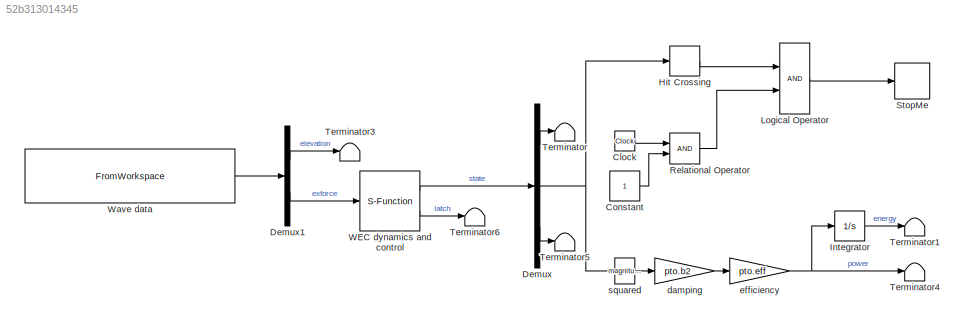
MODEL slx_52b313014345
KIND model
CONFIG AbsTol = auto
CONFIG EnableMultiTasking = off
CONFIG FixedStep = mdl.tStep
CONFIG MaxStep = auto
CONFIG MinStep = auto
CONFIG RelTol = 1e-3
CONFIG SampleTimeConstraint = Unconstrained
CONFIG Solver = ode3
CONFIG SolverName = ode3
CONFIG StartTime = 0.0
CONFIG StopTime = mdl.tEnd
BLOCK [Clock] Clock
BLOCK [Constant] Constant
BLOCK [Demux] Demux
  DisplayOption = bar
  Outputs = [3; 1; 4]
  Ports = [1, 3]
BLOCK [Demux] Demux1
  DisplayOption = bar
  Outputs = [1; 1]
  Ports = [1, 2]
BLOCK [HitCross] Hit Crossing
  Ports = [1, 1]
BLOCK [Integrator] Integrator
  Ports = [1, 1]
BLOCK [Logic] Logical Operator
  AllPortsSameDT = off
  OutDataTypeStr = boolean
  Ports = [2, 1]
BLOCK [RelationalOperator] Relational Operator
  InputSameDT = off
  OutDataTypeStr = boolean
  Ports = [2, 1]
  RndMeth = Simplest
BLOCK [Stop] StopMe
BLOCK [Terminator] Terminator
BLOCK [Terminator] Terminator1
BLOCK [Terminator] Terminator3
BLOCK [Terminator] Terminator4
BLOCK [Terminator] Terminator5
BLOCK [Terminator] Terminator6
BLOCK [S-Function] WEC dynamics and control
  EnableBusSupport = off
  FunctionName = wecLatch
  Parameters = nextDelatchTime,ss.A',ss.B',ics
  Ports = [1, 2]
  SFcnIsStateOwnerBlock = off
  SFunctionDeploymentMode = off
BLOCK [FromWorkspace] Wave data
  SampleTime = 0
  VariableName = [wave.time,wave.elevation,wave.excitation]
  ZeroCross = on
BLOCK [Gain] damping
  Gain = pto.b2
  OutDataTypeStr = Inherit: Inherit via internal rule
  ParamDataTypeStr = Inherit: Inherit via internal rule
  SaturateOnIntegerOverflow = off
BLOCK [Gain] efficiency
  Gain = pto.eff
  OutDataTypeStr = Inherit: Inherit via internal rule
  ParamDataTypeStr = Inherit: Inherit via internal rule
  SaturateOnIntegerOverflow = off
BLOCK [Math] squared
  Operator = magnitude^2
  Ports = [1, 1]
LINE Clock:1 -> Relational Operator:1
LINE Constant:1 -> Relational Operator:2
LINE Demux1:1 -> Terminator3:1
LINE Demux1:2 -> WEC dynamics and control:1
LINE Demux:1 -> Terminator:1
NET Demux:2 -> Hit Crossing:1, squared:1
LINE Demux:3 -> Terminator5:1
LINE Hit Crossing:1 -> Logical Operator:1
LINE Integrator:1 -> Terminator1:1
LINE Logical Operator:1 -> StopMe:1
LINE Relational Operator:1 -> Logical Operator:2
LINE WEC dynamics and control:1 -> Demux:1
LINE WEC dynamics and control:2 -> Terminator6:1
LINE Wave data:1 -> Demux1:1
LINE damping:1 -> efficiency:1
NET efficiency:1 -> Integrator:1, Terminator4:1
LINE squared:1 -> damping:1
note: NET lines group one-source signal fan-out (src -> all destinations, sorted); 1:1 wires keep LINE
